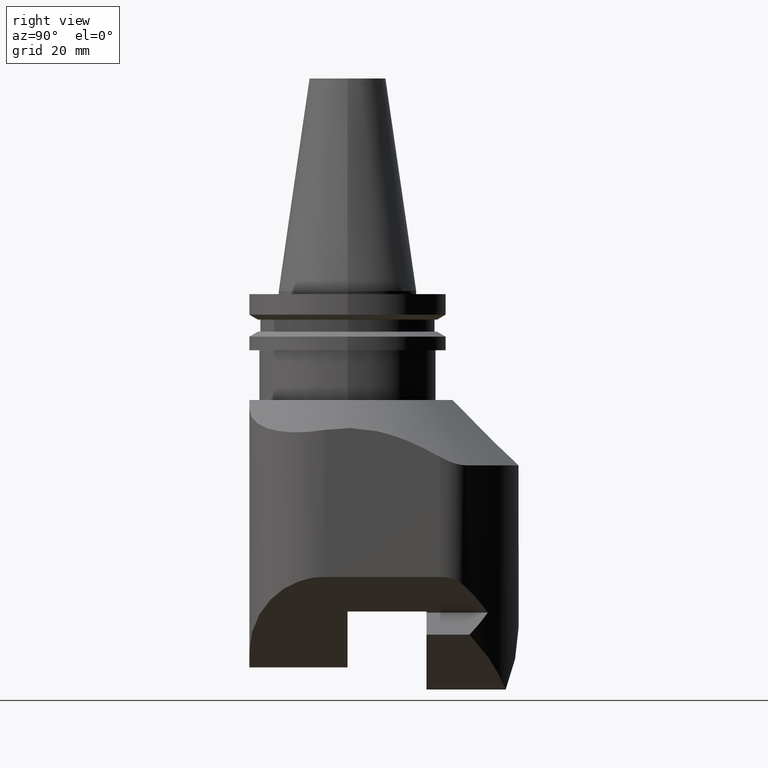
[diagram: clean part render]
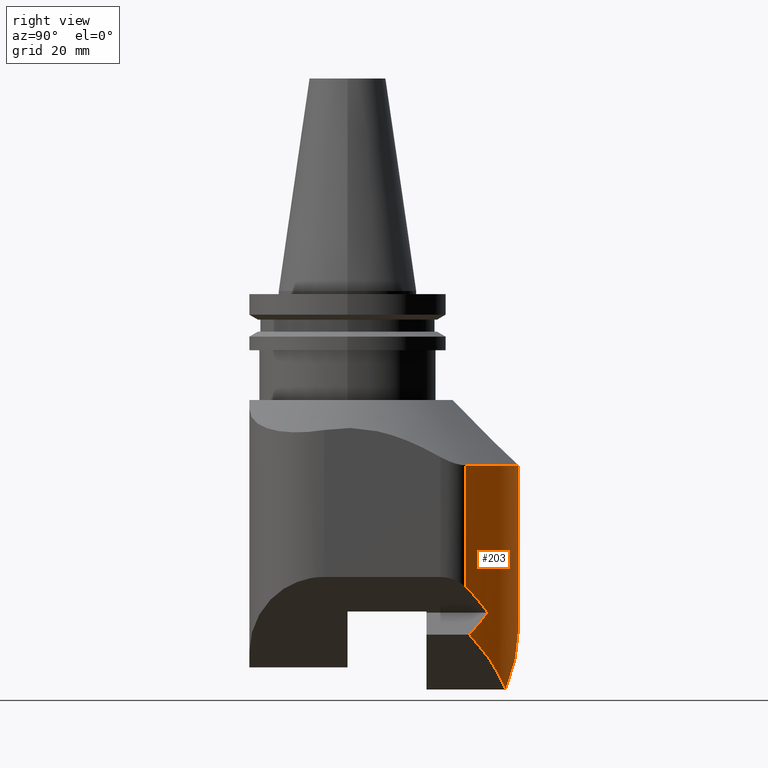
[diagram: same view with one face highlighted and labeled with its STEP entity id]
A machine part, right view. The second image highlights one B-rep face of the part: STEP entity #203.
In plain terms, the highlighted cylindrical surface (partial cylindrical patch) has radius 55 mm, axis along (0, -0, -1).
Its self-contained STEP definition (entity closure, byte-faithful):
#113=EDGE_CURVE('Unnamed[1]',#331,#332,#333,.T.);
#124=EDGE_CURVE('Unnamed[1]',#351,#352,#353,.T.);
#158=EDGE_CURVE('Unnamed[1]',#406,#352,#407,.T.);
#198=EDGE_CURVE('Unnamed[1]',#332,#339,#462,.T.);
#203=ADVANCED_FACE('Unnamed[1]',(#468),#469,.T.);
#209=EDGE_CURVE('Unnamed[1]',#406,#331,#475,.T.);
#266=EDGE_CURVE('Unnamed[1]',#339,#524,#547,.T.);
#301=EDGE_CURVE('Unnamed[1]',#524,#351,#598,.T.);
#331=VERTEX_POINT('',#623);
#332=VERTEX_POINT('',#624);
#333=ELLIPSE('',#625,77.7817459305204,55.0);
#339=VERTEX_POINT('',#633);
#351=VERTEX_POINT('',#651);
#352=VERTEX_POINT('',#652);
#353=CIRCLE('',#653,55.0000000000001);
#406=VERTEX_POINT('',#722);
#407=LINE('',#723,#724);
#462=ELLIPSE('',#841,77.781745860767,55.0);
#468=FACE_OUTER_BOUND('',#850,.T.);
#469=CYLINDRICAL_SURFACE('',#851,55.0);
#475=ELLIPSE('',#870,77.7817459305214,55.0);
#524=VERTEX_POINT('',#946);
#547=ELLIPSE('',#1009,77.7817459305204,55.0);
#598=LINE('',#1076,#1077);
#623=CARTESIAN_POINT('',(31.5358910396797,45.0609318182997,-103.321973336589));
#624=CARTESIAN_POINT('',(38.6069588654324,39.1727293810734,-110.393041162342));
#625=AXIS2_PLACEMENT_3D('',#1095,#1096,#1097);
#633=CARTESIAN_POINT('',(20.9999999961971,50.8330601101263,-127.999999999998));
#651=CARTESIAN_POINT('',(-48.7836038029173,25.4,-56.0));
#652=CARTESIAN_POINT('',(39.6511627906985,38.1154206240149,-56.0000000000004));
#653=AXIS2_PLACEMENT_3D('',#1117,#1118,#1119);
#722=CARTESIAN_POINT('',(39.6511627906986,38.115420624015,-95.2067015855701));
#723=CARTESIAN_POINT('',(39.6511627906986,38.1154206240149,-276.895414657619));
#724=VECTOR('',#1184,1.0);
#841=AXIS2_PLACEMENT_3D('',#1233,#1234,#1235);
#850=EDGE_LOOP('',(#1238,#1239,#1240,#1241,#1242,#1243,#1244));
#851=AXIS2_PLACEMENT_3D('',#1245,#1246,#1247);
#870=AXIS2_PLACEMENT_3D('',#1249,#1250,#1251);
#946=CARTESIAN_POINT('',(-48.7836038029172,25.4,-58.216396197082));
#1009=AXIS2_PLACEMENT_3D('',#1333,#1334,#1335);
#1076=CARTESIAN_POINT('',(-48.7836038029172,25.4,-91.9999999999948));
#1077=VECTOR('',#1396,1.0);
#1095=CARTESIAN_POINT('',(8.79125959082383E-015,-1.5939712282733E-014,-71.7860822969093));
#1096=DIRECTION('',(-0.707106781186549,1.57009245868378E-016,-0.707106781186546));
#1097=DIRECTION('',(0.707106781186546,-4.71027737605132E-016,-0.707106781186549));
#1117=CARTESIAN_POINT('',(6.85802207522517E-015,-1.24344978758018E-014,-56.0));
#1118=DIRECTION('',(1.22464679914742E-016,-2.22044604925031E-016,-1.0));
#1119=DIRECTION('',(1.0,-4.44089209850063E-016,1.22464679914742E-016));
#1184=DIRECTION('',(-1.22464679914735E-016,2.22044604925031E-016,1.0));
#1233=CARTESIAN_POINT('',(1.82472373022169E-014,-3.30846461246215E-014,-148.99999995853));
#1234=DIRECTION('',(-0.707106780552427,4.71027737464329E-016,0.707106781820668));
#1235=DIRECTION('',(0.707106781820668,-1.57009246290787E-016,0.707106780552427));
#1238=ORIENTED_EDGE('',*,*,#301,.T.);
#1239=ORIENTED_EDGE('',*,*,#124,.T.);
#1240=ORIENTED_EDGE('',*,*,#158,.F.);
#1241=ORIENTED_EDGE('',*,*,#209,.T.);
#1242=ORIENTED_EDGE('',*,*,#113,.T.);
#1243=ORIENTED_EDGE('',*,*,#198,.T.);
#1244=ORIENTED_EDGE('',*,*,#266,.T.);
#1245=CARTESIAN_POINT('',(1.12667505521555E-014,-2.04281036531027E-014,-91.999999999999));
#1246=DIRECTION('',(1.22464679914742E-016,-2.22044604925031E-016,-1.0));
#1247=DIRECTION('',(1.0,-4.44089209850063E-016,1.22464679914742E-016));
#1249=CARTESIAN_POINT('',(1.65153251948246E-014,-2.99444612164623E-014,-134.85786437627));
#1250=DIRECTION('',(-0.707106781186558,4.71027737605135E-016,0.707106781186537));
#1251=DIRECTION('',(0.707106781186537,-1.57009245868371E-016,0.707106781186558));
#1333=CARTESIAN_POINT('',(1.31037207508766E-014,-2.37587727269782E-014,-106.999999999999));
#1334=DIRECTION('',(0.707106781186549,-1.57009245868378E-016,0.707106781186546));
#1335=DIRECTION('',(0.707106781186546,-4.71027737605132E-016,-0.707106781186549));
#1396=DIRECTION('',(-1.22464679914735E-016,2.22044604925031E-016,1.0));